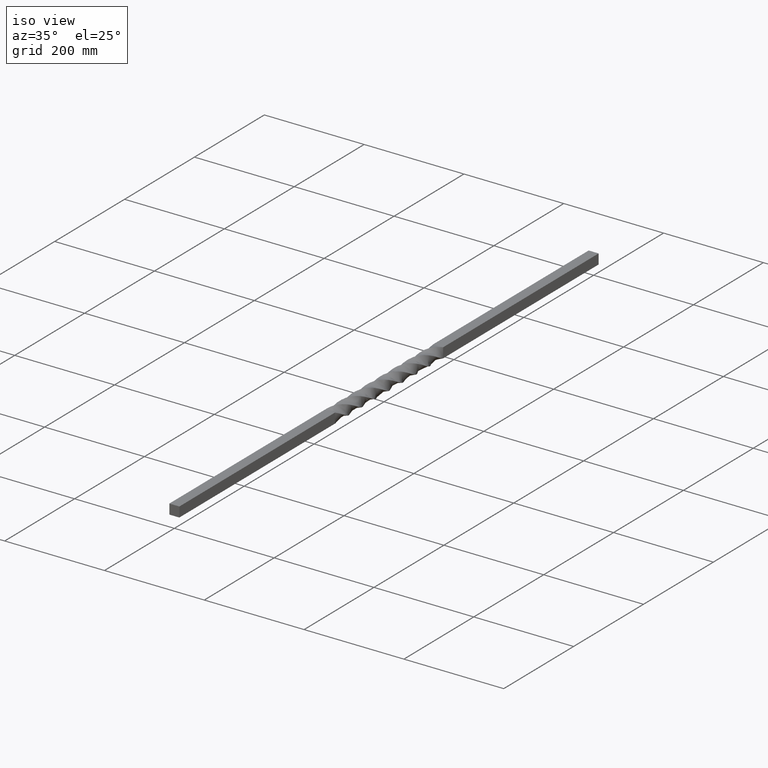
[diagram: clean part render]
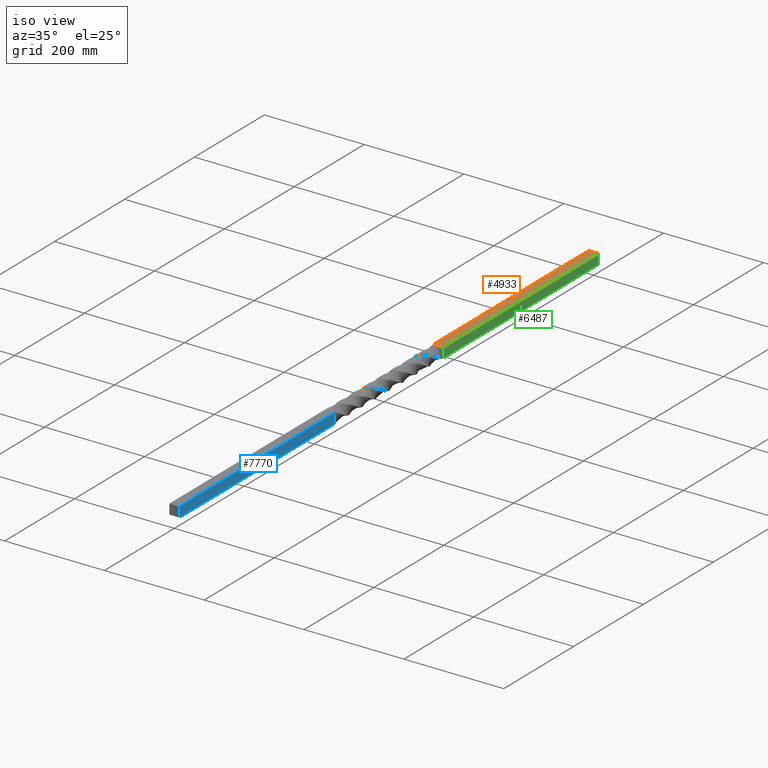
[diagram: same view with three faces highlighted in distinct colors, each labeled with its STEP entity id]
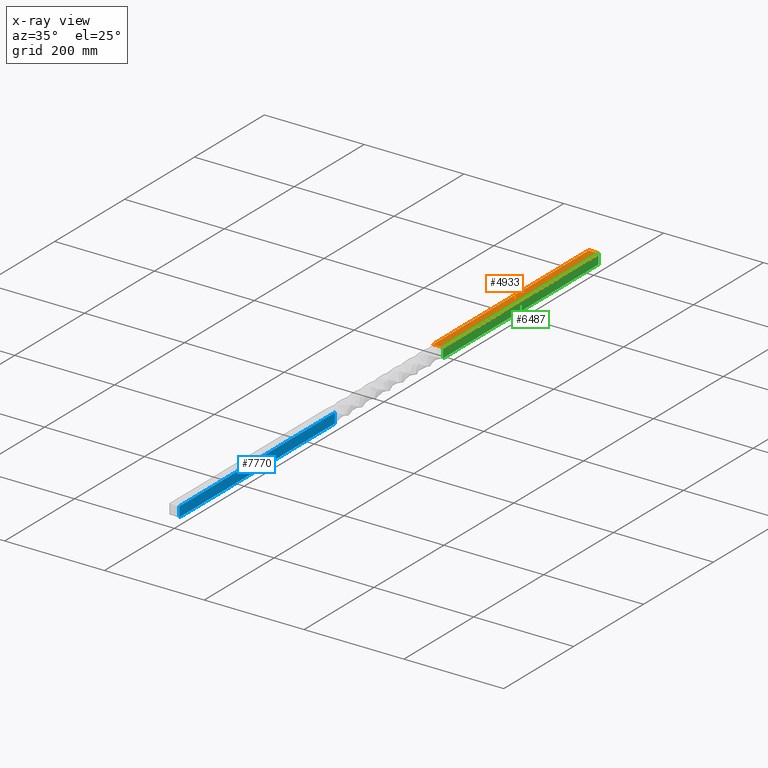
[diagram: x-ray of the same camera — body ghosted, the three highlighted faces saturated]
A machine part, iso view with three faces highlighted in distinct colors.
The next image is the same camera in x-ray (body ghosted, the three faces saturated) — at least one of them is partly hidden behind the body in this view.
Their STEP definitions:

[orange] entity #4933 — the highlighted planar face has unit normal (0, 0, -1).
#512 = PLANE ( 'NONE',  #6719 ) ;
#768 = CARTESIAN_POINT ( 'NONE',  ( -9.999999999999998224, 1200.000000000000000, 9.999999833333335530 ) ) ;
#1365 = CARTESIAN_POINT ( 'NONE',  ( 10.00000000000000355, 1051.666666666666515, 10.00000000000000178 ) ) ;
#1390 = CARTESIAN_POINT ( 'NONE',  ( -9.999999999999998224, 755.0000002499998573, 10.00000000000000178 ) ) ;
#1518 = CARTESIAN_POINT ( 'NONE',  ( 10.00000000000000355, 1200.000000000000000, 10.00000000000000178 ) ) ;
#1525 = DIRECTION ( 'NONE',  ( 1.000000000000000000, -0.000000000000000000, 0.000000000000000000 ) ) ;
#1645 = B_SPLINE_CURVE_WITH_KNOTS ( 'NONE', 3,
 ( #768, #4314, #5650, #1518 ),
 .UNSPECIFIED., .F., .F.,
 ( 4, 4 ),
 ( 0.000000000000000000, 1.000000000000000000 ),
 .UNSPECIFIED. ) ;
#1950 = VERTEX_POINT ( 'NONE', #4079 ) ;
#2045 = CARTESIAN_POINT ( 'NONE',  ( 10.00000000000000355, 1200.000000000000000, 10.00000000000000178 ) ) ;
#2448 = CARTESIAN_POINT ( 'NONE',  ( -9.999999999999998224, 1200.000000000000000, 9.999999833333335530 ) ) ;
#2471 = FACE_OUTER_BOUND ( 'NONE', #7767, .T. ) ;
#2942 = CARTESIAN_POINT ( 'NONE',  ( -9.999999999999998224, 754.9999999999998863, 10.00000000000000178 ) ) ;
#3099 = EDGE_CURVE ( 'NONE', #5614, #1950, #5158, .T. ) ;
#3512 = ORIENTED_EDGE ( 'NONE', *, *, #4064, .F. ) ;
#4064 = EDGE_CURVE ( 'NONE', #5614, #8005, #1645, .T. ) ;
#4079 = CARTESIAN_POINT ( 'NONE',  ( -9.999999999999998224, 755.0000002499998573, 10.00000000000000178 ) ) ;
#4314 = CARTESIAN_POINT ( 'NONE',  ( -3.333333333333330817, 1200.000000000000000, 10.00000000000000178 ) ) ;
#4454 = EDGE_CURVE ( 'NONE', #8005, #8732, #6305, .T. ) ;
#4668 = DIRECTION ( 'NONE',  ( -1.000000000000000000, 0.000000000000000000, -0.000000000000000000 ) ) ;
#4933 = ADVANCED_FACE ( 'NONE', ( #2471 ), #512, .F. ) ;
#5158 = B_SPLINE_CURVE_WITH_KNOTS ( 'NONE', 3,
 ( #7580, #8931, #6823, #1390 ),
 .UNSPECIFIED., .F., .F.,
 ( 4, 4 ),
 ( 0.000000000000000000, 1.000000000000000000 ),
 .UNSPECIFIED. ) ;
#5342 = CARTESIAN_POINT ( 'NONE',  ( 10.00000000000000533, 755.0000002499998573, 10.00000000000000178 ) ) ;
#5614 = VERTEX_POINT ( 'NONE', #2448 ) ;
#5650 = CARTESIAN_POINT ( 'NONE',  ( 3.333333333333336590, 1200.000000000000000, 10.00000000000000178 ) ) ;
#5758 = CARTESIAN_POINT ( 'NONE',  ( 10.00000000000000355, 1200.000000000000000, 10.00000000000000178 ) ) ;
#5811 = ORIENTED_EDGE ( 'NONE', *, *, #3099, .T. ) ;
#5925 = ORIENTED_EDGE ( 'NONE', *, *, #4454, .F. ) ;
#5956 = VECTOR ( 'NONE', #1525, 1000.000000000000000 ) ;
#6231 = CARTESIAN_POINT ( 'NONE',  ( 10.00000000000000355, 903.3333333333332575, 10.00000000000000178 ) ) ;
#6305 = B_SPLINE_CURVE_WITH_KNOTS ( 'NONE', 3,
 ( #2045, #1365, #6231, #6919 ),
 .UNSPECIFIED., .F., .F.,
 ( 4, 4 ),
 ( 0.000000000000000000, 1.000000000000000000 ),
 .UNSPECIFIED. ) ;
#6482 = LINE ( 'NONE', #2942, #5956 ) ;
#6719 = AXIS2_PLACEMENT_3D ( 'NONE', #7447, #7326, #4668 ) ;
#6823 = CARTESIAN_POINT ( 'NONE',  ( -9.999999999999998224, 903.3333333333332575, 10.00000000000000178 ) ) ;
#6919 = CARTESIAN_POINT ( 'NONE',  ( 10.00000000000000533, 755.0000002499998573, 10.00000000000000178 ) ) ;
#7326 = DIRECTION ( 'NONE',  ( 0.000000000000000000, 0.000000000000000000, -1.000000000000000000 ) ) ;
#7383 = ORIENTED_EDGE ( 'NONE', *, *, #8492, .T. ) ;
#7447 = CARTESIAN_POINT ( 'NONE',  ( -9.999999999999998224, 1200.000000000000000, 10.00000000000000178 ) ) ;
#7580 = CARTESIAN_POINT ( 'NONE',  ( -9.999999999999998224, 1200.000000000000000, 9.999999833333335530 ) ) ;
#7767 = EDGE_LOOP ( 'NONE', ( #5811, #7383, #5925, #3512 ) ) ;
#8005 = VERTEX_POINT ( 'NONE', #5758 ) ;
#8492 = EDGE_CURVE ( 'NONE', #1950, #8732, #6482, .T. ) ;
#8732 = VERTEX_POINT ( 'NONE', #5342 ) ;
#8931 = CARTESIAN_POINT ( 'NONE',  ( -9.999999999999998224, 1051.666666666666515, 10.00000000000000178 ) ) ;

[blue] entity #7770 — the highlighted planar face has unit normal (-1, 0, 0).
#199 = DIRECTION ( 'NONE',  ( 2.602085213965210149E-16, 0.000000000000000000, 1.000000000000000000 ) ) ;
#487 = CARTESIAN_POINT ( 'NONE',  ( 9.999999999999998224, 148.3333333333333428, -10.00000000000000178 ) ) ;
#641 = B_SPLINE_CURVE_WITH_KNOTS ( 'NONE', 3,
 ( #7692, #5592, #1380, #5623 ),
 .UNSPECIFIED., .F., .F.,
 ( 4, 4 ),
 ( 0.000000000000000000, 0.9999999750000000409 ),
 .UNSPECIFIED. ) ;
#694 = CARTESIAN_POINT ( 'NONE',  ( 10.00000000000000355, 148.3333333333333428, 10.00000000000000178 ) ) ;
#744 = EDGE_LOOP ( 'NONE', ( #5290, #4509, #4681, #4761 ) ) ;
#898 = VERTEX_POINT ( 'NONE', #8452 ) ;
#1380 = CARTESIAN_POINT ( 'NONE',  ( 10.00000000000000000, 0.000000000000000000, -3.333333333333333925 ) ) ;
#1924 = DIRECTION ( 'NONE',  ( -2.602085213965210149E-16, -0.000000000000000000, -1.000000000000000000 ) ) ;
#2080 = CARTESIAN_POINT ( 'NONE',  ( 9.999999833333335530, 0.000000000000000000, 10.00000000000000178 ) ) ;
#2497 = CARTESIAN_POINT ( 'NONE',  ( 9.999999999999998224, 445.0000000000000568, -10.00000000000000178 ) ) ;
#2515 = EDGE_CURVE ( 'NONE', #6294, #2857, #641, .T. ) ;
#2857 = VERTEX_POINT ( 'NONE', #3970 ) ;
#2998 = B_SPLINE_CURVE_WITH_KNOTS ( 'NONE', 3,
 ( #4260, #4956, #694, #5565 ),
 .UNSPECIFIED., .F., .F.,
 ( 4, 4 ),
 ( 0.000000000000000000, 1.000000000000000000 ),
 .UNSPECIFIED. ) ;
#3052 = EDGE_CURVE ( 'NONE', #898, #7895, #5663, .T. ) ;
#3598 = DIRECTION ( 'NONE',  ( -1.000000000000000000, 0.000000000000000000, 2.602085213965210149E-16 ) ) ;
#3622 = EDGE_CURVE ( 'NONE', #898, #6294, #2998, .T. ) ;
#3970 = CARTESIAN_POINT ( 'NONE',  ( 9.999999999999998224, 0.000000000000000000, -9.999999833333335530 ) ) ;
#4260 = CARTESIAN_POINT ( 'NONE',  ( 10.00000002643306907, 445.0000000717489002, 9.999999970839224872 ) ) ;
#4344 = PLANE ( 'NONE',  #7569 ) ;
#4476 = VECTOR ( 'NONE', #1924, 1000.000000000000000 ) ;
#4509 = ORIENTED_EDGE ( 'NONE', *, *, #4943, .F. ) ;
#4681 = ORIENTED_EDGE ( 'NONE', *, *, #3052, .F. ) ;
#4761 = ORIENTED_EDGE ( 'NONE', *, *, #3622, .T. ) ;
#4943 = EDGE_CURVE ( 'NONE', #7895, #2857, #6938, .T. ) ;
#4956 = CARTESIAN_POINT ( 'NONE',  ( 10.00000000000000355, 296.6666666666666856, 10.00000000000000178 ) ) ;
#5089 = FACE_OUTER_BOUND ( 'NONE', #744, .T. ) ;
#5276 = CARTESIAN_POINT ( 'NONE',  ( 9.999999999999998224, 445.0000000000000568, -10.00000000000000178 ) ) ;
#5290 = ORIENTED_EDGE ( 'NONE', *, *, #2515, .T. ) ;
#5354 = CARTESIAN_POINT ( 'NONE',  ( 9.999999999999998224, 0.000000000000000000, -9.999999833333335530 ) ) ;
#5380 = CARTESIAN_POINT ( 'NONE',  ( 9.999999999999998224, 296.6666666666666856, -10.00000000000000178 ) ) ;
#5565 = CARTESIAN_POINT ( 'NONE',  ( 9.999999833333335530, 0.000000000000000000, 10.00000000000000178 ) ) ;
#5592 = CARTESIAN_POINT ( 'NONE',  ( 10.00000000000000178, 0.000000000000000000, 3.333333333333333925 ) ) ;
#5623 = CARTESIAN_POINT ( 'NONE',  ( 9.999999999999998224, 0.000000000000000000, -9.999999833333335530 ) ) ;
#5663 = LINE ( 'NONE', #7393, #4476 ) ;
#6294 = VERTEX_POINT ( 'NONE', #2080 ) ;
#6938 = B_SPLINE_CURVE_WITH_KNOTS ( 'NONE', 3,
 ( #5276, #5380, #487, #5354 ),
 .UNSPECIFIED., .F., .F.,
 ( 4, 4 ),
 ( 0.000000000000000000, 1.000000000000000000 ),
 .UNSPECIFIED. ) ;
#7393 = CARTESIAN_POINT ( 'NONE',  ( 9.999999999999998224, 445.0000000000000568, -10.00000000000000178 ) ) ;
#7569 = AXIS2_PLACEMENT_3D ( 'NONE', #7809, #3598, #199 ) ;
#7692 = CARTESIAN_POINT ( 'NONE',  ( 9.999999833333335530, 0.000000000000000000, 10.00000000000000178 ) ) ;
#7770 = ADVANCED_FACE ( 'NONE', ( #5089 ), #4344, .F. ) ;
#7809 = CARTESIAN_POINT ( 'NONE',  ( 9.999999999999998224, 1200.000000000000000, -10.00000000000000178 ) ) ;
#7895 = VERTEX_POINT ( 'NONE', #2497 ) ;
#8452 = CARTESIAN_POINT ( 'NONE',  ( 10.00000002643306907, 445.0000000717489002, 9.999999970839224872 ) ) ;

[green] entity #6487 — the highlighted planar face has unit normal (-1, 0, 0).
#471 = VERTEX_POINT ( 'NONE', #5018 ) ;
#735 = AXIS2_PLACEMENT_3D ( 'NONE', #5246, #8808, #6047 ) ;
#1166 = LINE ( 'NONE', #4774, #4212 ) ;
#1290 = DIRECTION ( 'NONE',  ( -2.602085213965210149E-16, -0.000000000000000000, -1.000000000000000000 ) ) ;
#1365 = CARTESIAN_POINT ( 'NONE',  ( 10.00000000000000355, 1051.666666666666515, 10.00000000000000178 ) ) ;
#1787 = B_SPLINE_CURVE_WITH_KNOTS ( 'NONE', 3,
 ( #4898, #5605, #6227, #8335 ),
 .UNSPECIFIED., .F., .F.,
 ( 4, 4 ),
 ( 0.000000000000000000, 0.9999999750000000409 ),
 .UNSPECIFIED. ) ;
#1835 = VERTEX_POINT ( 'NONE', #7360 ) ;
#2045 = CARTESIAN_POINT ( 'NONE',  ( 10.00000000000000355, 1200.000000000000000, 10.00000000000000178 ) ) ;
#2050 = EDGE_CURVE ( 'NONE', #8005, #1835, #1787, .T. ) ;
#2244 = CARTESIAN_POINT ( 'NONE',  ( 9.999999989881702689, 755.0000000274516196, -10.00000001115726711 ) ) ;
#4074 = ORIENTED_EDGE ( 'NONE', *, *, #4454, .T. ) ;
#4212 = VECTOR ( 'NONE', #1290, 1000.000000000000000 ) ;
#4270 = CARTESIAN_POINT ( 'NONE',  ( 9.999999999999998224, 903.3333333333332575, -10.00000000000000178 ) ) ;
#4335 = CARTESIAN_POINT ( 'NONE',  ( 9.999999999999998224, 1200.000000000000000, -9.999999833333335530 ) ) ;
#4454 = EDGE_CURVE ( 'NONE', #8005, #8732, #6305, .T. ) ;
#4551 = EDGE_CURVE ( 'NONE', #1835, #471, #6425, .T. ) ;
#4774 = CARTESIAN_POINT ( 'NONE',  ( 9.999999999999998224, 754.9999999999998863, -10.00000000000000178 ) ) ;
#4898 = CARTESIAN_POINT ( 'NONE',  ( 10.00000000000000355, 1200.000000000000000, 10.00000000000000178 ) ) ;
#4995 = CARTESIAN_POINT ( 'NONE',  ( 9.999999999999998224, 1051.666666666666515, -10.00000000000000178 ) ) ;
#5018 = CARTESIAN_POINT ( 'NONE',  ( 9.999999989881702689, 755.0000000274516196, -10.00000001115726711 ) ) ;
#5246 = CARTESIAN_POINT ( 'NONE',  ( 9.999999999999998224, 1200.000000000000000, -10.00000000000000178 ) ) ;
#5342 = CARTESIAN_POINT ( 'NONE',  ( 10.00000000000000533, 755.0000002499998573, 10.00000000000000178 ) ) ;
#5605 = CARTESIAN_POINT ( 'NONE',  ( 10.00000000000000178, 1200.000000000000000, 3.333333333333333925 ) ) ;
#5704 = EDGE_LOOP ( 'NONE', ( #4074, #6099, #8788, #6369 ) ) ;
#5758 = CARTESIAN_POINT ( 'NONE',  ( 10.00000000000000355, 1200.000000000000000, 10.00000000000000178 ) ) ;
#5792 = EDGE_CURVE ( 'NONE', #8732, #471, #1166, .T. ) ;
#6047 = DIRECTION ( 'NONE',  ( 2.602085213965210149E-16, 0.000000000000000000, 1.000000000000000000 ) ) ;
#6099 = ORIENTED_EDGE ( 'NONE', *, *, #5792, .T. ) ;
#6227 = CARTESIAN_POINT ( 'NONE',  ( 10.00000000000000000, 1200.000000000000000, -3.333333333333333925 ) ) ;
#6231 = CARTESIAN_POINT ( 'NONE',  ( 10.00000000000000355, 903.3333333333332575, 10.00000000000000178 ) ) ;
#6305 = B_SPLINE_CURVE_WITH_KNOTS ( 'NONE', 3,
 ( #2045, #1365, #6231, #6919 ),
 .UNSPECIFIED., .F., .F.,
 ( 4, 4 ),
 ( 0.000000000000000000, 1.000000000000000000 ),
 .UNSPECIFIED. ) ;
#6369 = ORIENTED_EDGE ( 'NONE', *, *, #2050, .F. ) ;
#6425 = B_SPLINE_CURVE_WITH_KNOTS ( 'NONE', 3,
 ( #4335, #4995, #4270, #2244 ),
 .UNSPECIFIED., .F., .F.,
 ( 4, 4 ),
 ( 0.000000000000000000, 1.000000000000000000 ),
 .UNSPECIFIED. ) ;
#6487 = ADVANCED_FACE ( 'NONE', ( #8044 ), #8667, .F. ) ;
#6919 = CARTESIAN_POINT ( 'NONE',  ( 10.00000000000000533, 755.0000002499998573, 10.00000000000000178 ) ) ;
#7360 = CARTESIAN_POINT ( 'NONE',  ( 9.999999999999998224, 1200.000000000000000, -9.999999833333335530 ) ) ;
#8005 = VERTEX_POINT ( 'NONE', #5758 ) ;
#8044 = FACE_OUTER_BOUND ( 'NONE', #5704, .T. ) ;
#8335 = CARTESIAN_POINT ( 'NONE',  ( 9.999999999999998224, 1200.000000000000000, -9.999999833333335530 ) ) ;
#8667 = PLANE ( 'NONE',  #735 ) ;
#8732 = VERTEX_POINT ( 'NONE', #5342 ) ;
#8788 = ORIENTED_EDGE ( 'NONE', *, *, #4551, .F. ) ;
#8808 = DIRECTION ( 'NONE',  ( -1.000000000000000000, 0.000000000000000000, 2.602085213965210149E-16 ) ) ;